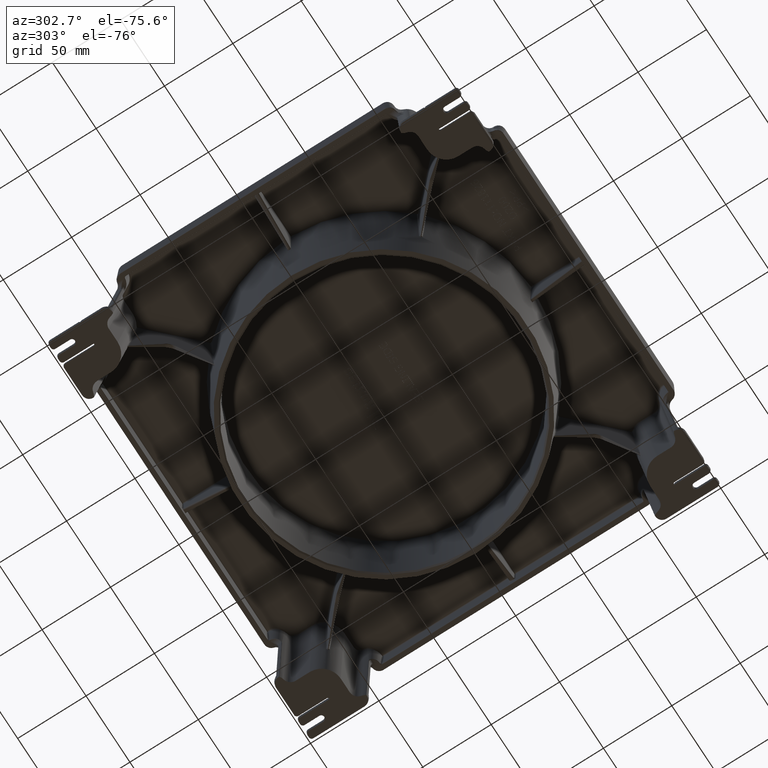
[diagram: clean part render]
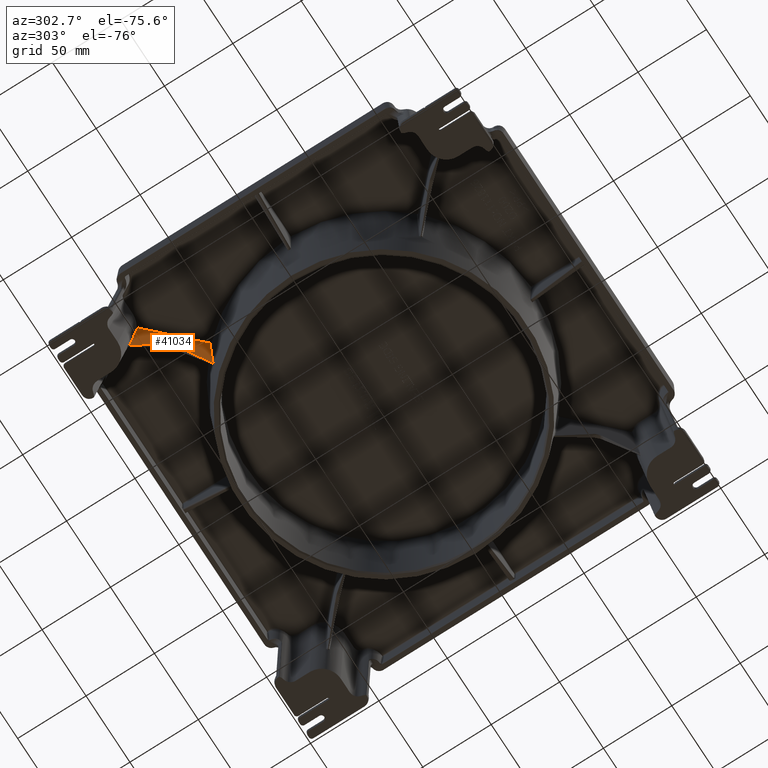
[diagram: same view with one face highlighted and labeled with its STEP entity id]
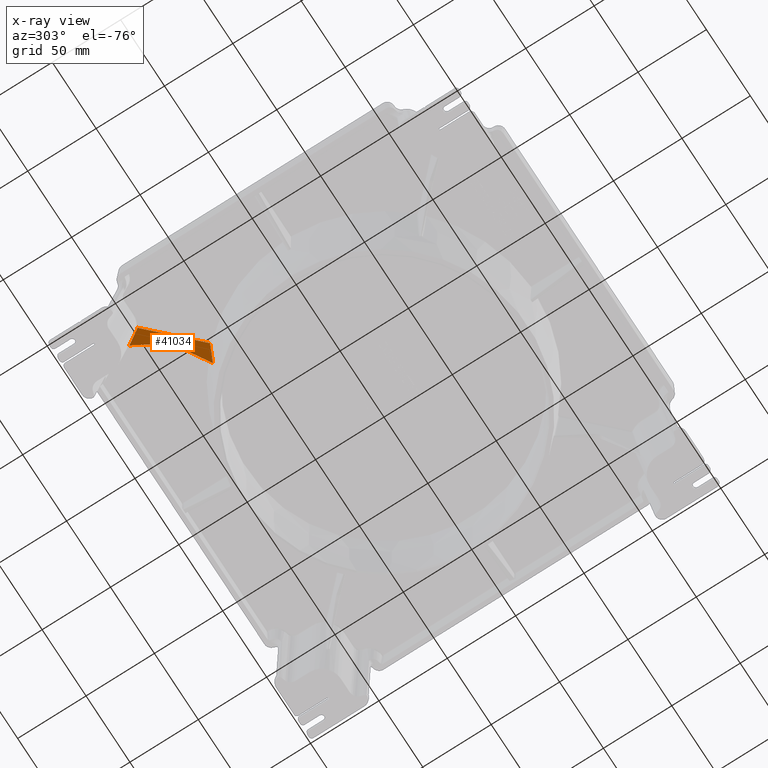
[diagram: x-ray of the same camera — body ghosted, the highlighted face saturated]
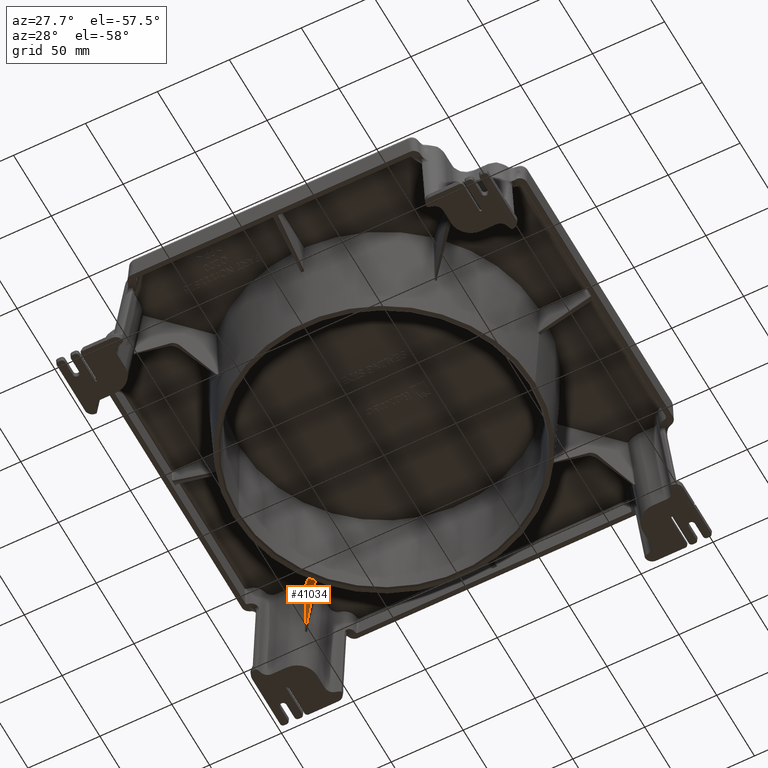
[diagram: same view with one face highlighted and labeled with its STEP entity id]
A machine part, auxiliary view. The second image highlights one B-rep face of the part: STEP entity #41034.
The next image is the same camera in x-ray: the body ghosted, the highlighted face saturated — about 0% of this face is hidden behind the body in this view.
A second angle (auxiliary view) of the same face is appended — the face is thin or edge-on in the first view.
In plain terms, the highlighted planar face has unit normal (-0.7067, -0.7067, -0.0349).
Its self-contained STEP definition (entity closure, byte-faithful):
#39734=CARTESIAN_POINT('',(-113.8883525332771,113.19723310366928,-47.278106030040696));
#39735=VERTEX_POINT('',#39734);
#39796=CARTESIAN_POINT('',(-76.571239815724425,75.885568040945273,-47.388414987342067));
#39797=VERTEX_POINT('',#39796);
#40726=CARTESIAN_POINT('',(-111.38951566467986,108.60875043925182,-4.96510050329749));
#40727=VERTEX_POINT('',#40726);
#40735=CARTESIAN_POINT('',(-79.16986493098824,76.389099705560355,-4.965100503297464));
#40736=VERTEX_POINT('',#40735);
#40737=CARTESIAN_POINT('',(-111.38951566467985,108.60875043925182,-4.965100503297499));
#40738=DIRECTION('',(0.707106781186549,-0.707106781186546,0.0));
#40739=VECTOR('',#40738,45.565467042510804);
#40740=LINE('',#40737,#40739);
#40741=EDGE_CURVE('',#40727,#40736,#40740,.T.);
#40792=CARTESIAN_POINT('',(-79.169864932459944,76.389099707037346,-4.965100503404722));
#40793=CARTESIAN_POINT('',(-78.305857395781914,76.223464590216963,-19.106366032839489));
#40794=CARTESIAN_POINT('',(-77.439693665988273,76.055665539915793,-33.247474828480399));
#40795=CARTESIAN_POINT('',(-76.571239815724425,75.885568040945287,-47.388414987342067));
#40796=B_SPLINE_CURVE_WITH_KNOTS('',3,(#40792,#40793,#40794,#40795),.UNSPECIFIED.,.F.,.U.,(4,4),(0.195266773610295,4.44584791556172),.UNSPECIFIED.);
#40797=EDGE_CURVE('',#40736,#39797,#40796,.T.);
#40834=CARTESIAN_POINT('',(-127.19904670333511,128.61239876501682,-89.891315416973072));
#40835=DIRECTION('',(-0.706676030840833,-0.706676030840836,-0.034899496702501));
#40836=DIRECTION('',(0.062388022237853,-0.111369417397992,0.991818827987088));
#40837=AXIS2_PLACEMENT_3D('',#40834,#40835,#40836);
#40838=ELLIPSE('',#40837,433.08297668579939,15.000000000000002);
#40839=EDGE_CURVE('',#39735,#40727,#40838,.T.);
#40982=CARTESIAN_POINT('',(-93.488405027578963,91.779701296976555,-26.673154588968981));
#40983=VERTEX_POINT('',#40982);
#40984=CARTESIAN_POINT('',(-76.571239815724425,75.885568040945287,-47.388414987342074));
#40985=DIRECTION('',(-0.543756269408965,0.510873689330193,0.665835710238346));
#40986=VECTOR('',#40985,31.111669259910585);
#40987=LINE('',#40984,#40986);
#40988=EDGE_CURVE('',#39797,#40983,#40987,.T.);
#41008=CARTESIAN_POINT('',(-114.6538807550881,114.04644400039223,-48.972587215859306));
#41009=DIRECTION('',(-0.706676030840833,-0.706676030840836,-0.034899496702501));
#41010=DIRECTION('',(-0.024677670778336,-0.024677670778336,0.999390827019096));
#41011=AXIS2_PLACEMENT_3D('',#41008,#41009,#41010);
#41012=PLANE('',#41011);
#41013=ORIENTED_EDGE('',*,*,#40797,.F.);
#41014=ORIENTED_EDGE('',*,*,#40741,.F.);
#41015=ORIENTED_EDGE('',*,*,#40839,.F.);
#41016=CARTESIAN_POINT('',(-98.719931009586077,97.014582193162354,-26.741087873389233));
#41017=VERTEX_POINT('',#41016);
#41018=CARTESIAN_POINT('',(-98.719931009586091,97.01458219316234,-26.741087873389233));
#41019=DIRECTION('',(-0.501801374972436,0.535354088420357,-0.679405166367891));
#41020=VECTOR('',#41019,30.227939340589135);
#41021=LINE('',#41018,#41020);
#41022=EDGE_CURVE('',#41017,#39735,#41021,.T.);
#41023=ORIENTED_EDGE('',*,*,#41022,.F.);
#41024=CARTESIAN_POINT('',(-95.977292760376287,94.47120049958933,-30.775811727911528));
#41025=DIRECTION('',(-0.706676030840833,-0.706676030840836,-0.034899496702501));
#41026=DIRECTION('',(-0.024677670778322,-0.02467767077835,0.999390827019096));
#41027=AXIS2_PLACEMENT_3D('',#41024,#41025,#41026);
#41028=ELLIPSE('',#41027,5.503352493643521,5.500000000000002);
#41029=EDGE_CURVE('',#40983,#41017,#41028,.T.);
#41030=ORIENTED_EDGE('',*,*,#41029,.F.);
#41031=ORIENTED_EDGE('',*,*,#40988,.F.);
#41032=EDGE_LOOP('',(#41013,#41014,#41015,#41023,#41030,#41031));
#41033=FACE_OUTER_BOUND('',#41032,.T.);
#41034=ADVANCED_FACE('',(#41033),#41012,.T.);